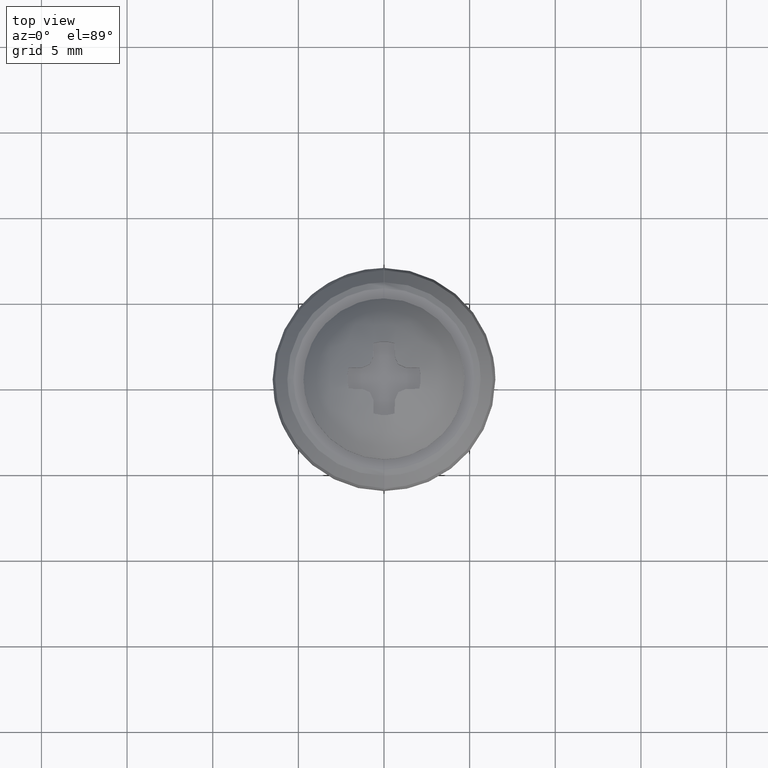
[diagram: clean part render]
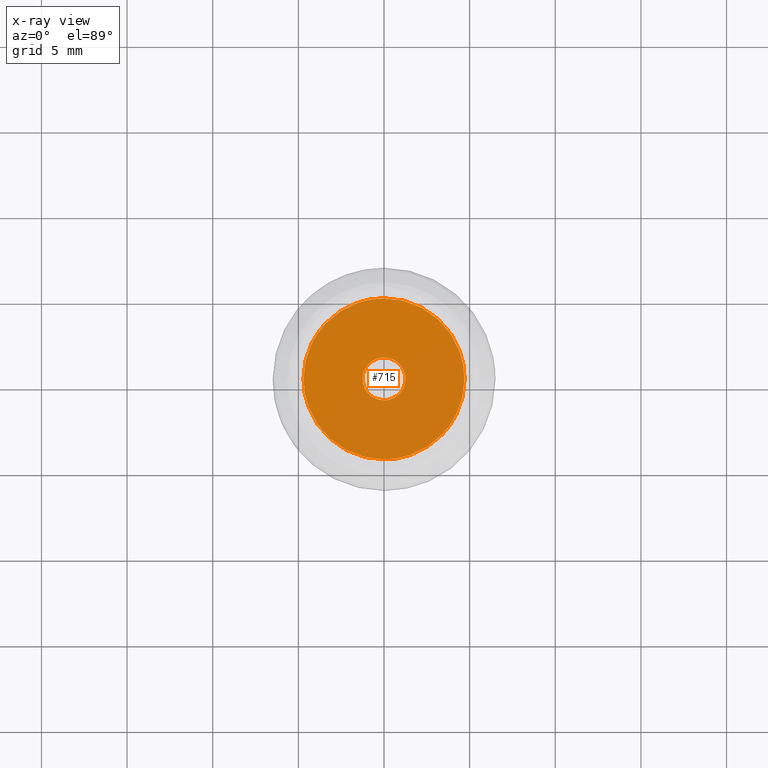
[diagram: x-ray — body ghosted, one internal face saturated and labeled with its STEP entity id]
A machine part, top view, then the same camera in x-ray: the body is ghosted and one INTERNAL B-rep face — a face not visible from any outside direction — is saturated and labeled: STEP entity #715.
In plain terms, the highlighted face is a freeform B-spline surface patch.
Its self-contained STEP definition (entity closure, byte-faithful):
#497=CARTESIAN_POINT('',(0.913298772864262,-0.853454765485998,-3.053113E-016));
#498=VERTEX_POINT('',#497);
#504=CARTESIAN_POINT('',(-0.000000504762925,-1.249999999999848,0.0));
#505=VERTEX_POINT('',#504);
#506=CARTESIAN_POINT('',(0.913298772864262,-0.853454765485998,-3.053113E-016));
#507=CARTESIAN_POINT('',(0.815036685641195,-0.958751061393551,-2.724628E-016));
#508=CARTESIAN_POINT('',(0.616163269110444,-1.108616792406550,-2.059805E-016));
#509=CARTESIAN_POINT('',(0.293348147623508,-1.227160404170854,-9.806499E-017));
#510=CARTESIAN_POINT('',(0.096006950743244,-1.250016650641018,-3.209481E-017));
#511=CARTESIAN_POINT('',(-0.000000504762925,-1.249999999999848,0.0));
#512=B_SPLINE_CURVE_WITH_KNOTS('',3,(#506,#507,#508,#509,#510,#511),.UNSPECIFIED.,.F.,.U.,(4,1,1,4),(0.000000012271989,0.432035370959825,0.736056319482388,1.024079343359964),.UNSPECIFIED.);
#513=EDGE_CURVE('',#498,#505,#512,.T.);
#515=CARTESIAN_POINT('',(-1.249999999999950,0.0,0.0));
#516=VERTEX_POINT('',#515);
#517=CARTESIAN_POINT('',(-0.000000504762925,-1.249999999999848,0.0));
#518=CARTESIAN_POINT('',(-0.086922914385512,-1.250008038506560,0.0));
#519=CARTESIAN_POINT('',(-0.281232915642927,-1.229673677455560,0.0));
#520=CARTESIAN_POINT('',(-0.539074447482532,-1.139198976853185,0.0));
#521=CARTESIAN_POINT('',(-0.761166950377641,-1.000423558041240,0.0));
#522=CARTESIAN_POINT('',(-0.965526266419400,-0.812989997593262,0.0));
#523=CARTESIAN_POINT('',(-1.132075008056065,-0.563717261679689,0.0));
#524=CARTESIAN_POINT('',(-1.230727713776745,-0.270998070501498,0.0));
#525=CARTESIAN_POINT('',(-1.250011359009024,-0.086923556994202,0.0));
#526=CARTESIAN_POINT('',(-1.249999999999950,0.0,0.0));
#527=B_SPLINE_CURVE_WITH_KNOTS('',3,(#517,#518,#519,#520,#521,#522,#523,#524,#525,#526),.UNSPECIFIED.,.F.,.U.,(4,1,1,1,1,1,1,4),(0.000000046898353,0.260771659676944,0.582918602110179,0.813018665775918,1.043103929367112,1.411269265430535,1.702736049401985,1.963507444103697),.UNSPECIFIED.);
#528=EDGE_CURVE('',#505,#516,#527,.T.);
#530=CARTESIAN_POINT('',(-0.913298772864259,0.853454765485996,-3.053113E-016));
#531=VERTEX_POINT('',#530);
#532=CARTESIAN_POINT('',(-1.249999999999950,0.0,0.0));
#533=CARTESIAN_POINT('',(-1.250055502042735,0.127218161839550,-4.551049E-017));
#534=CARTESIAN_POINT('',(-1.214592316061029,0.357154055289585,-1.277668E-016));
#535=CARTESIAN_POINT('',(-1.083436750263942,0.644127939938148,-2.304276E-016));
#536=CARTESIAN_POINT('',(-0.970094649051025,0.792686962621929,-2.835725E-016));
#537=CARTESIAN_POINT('',(-0.913298772864259,0.853454765485996,-3.053113E-016));
#538=B_SPLINE_CURVE_WITH_KNOTS('',3,(#532,#533,#534,#535,#536,#537),.UNSPECIFIED.,.F.,.U.,(4,1,1,4),(0.000000010163139,0.381645720299999,0.689892987150889,0.939428859794186),.UNSPECIFIED.);
#539=EDGE_CURVE('',#516,#531,#538,.T.);
#575=CARTESIAN_POINT('',(0.000000504762939,1.249999999999848,0.0));
#576=VERTEX_POINT('',#575);
#577=CARTESIAN_POINT('',(-0.913298772864259,0.853454765485996,-3.053113E-016));
#578=CARTESIAN_POINT('',(-0.840485534947792,0.931418693822302,-2.809702E-016));
#579=CARTESIAN_POINT('',(-0.678875671974633,1.065080116090091,-2.269449E-016));
#580=CARTESIAN_POINT('',(-0.367987497220752,1.212078282902805,-1.230165E-016));
#581=CARTESIAN_POINT('',(-0.133351924306579,1.250078774282133,-4.457905E-017));
#582=CARTESIAN_POINT('',(0.000000504762939,1.249999999999848,0.0));
#583=B_SPLINE_CURVE_WITH_KNOTS('',3,(#577,#578,#579,#580,#581,#582),.UNSPECIFIED.,.F.,.U.,(4,1,1,4),(0.000000012272007,0.320026811375542,0.624046110245351,1.024079343359976),.UNSPECIFIED.);
#584=EDGE_CURVE('',#531,#576,#583,.T.);
#586=CARTESIAN_POINT('',(1.249999999999950,0.0,0.0));
#587=VERTEX_POINT('',#586);
#588=CARTESIAN_POINT('',(0.000000504762939,1.249999999999848,0.0));
#589=CARTESIAN_POINT('',(0.112495768207603,1.250038912995559,0.0));
#590=CARTESIAN_POINT('',(0.306780005361517,1.223585664392616,0.0));
#591=CARTESIAN_POINT('',(0.560844788915689,1.125575790520098,0.0));
#592=CARTESIAN_POINT('',(0.761176241175037,1.000432261987470,0.0));
#593=CARTESIAN_POINT('',(0.923864016253613,0.851148979651076,0.0));
#594=CARTESIAN_POINT('',(1.061624047284219,0.672369460475011,0.0));
#595=CARTESIAN_POINT('',(1.203642184311960,0.398740695535015,0.0));
#596=CARTESIAN_POINT('',(1.250167510060191,0.158539901888325,0.0));
#597=CARTESIAN_POINT('',(1.249999999999950,0.0,0.0));
#598=B_SPLINE_CURVE_WITH_KNOTS('',3,(#588,#589,#590,#591,#592,#593,#594,#595,#596,#597),.UNSPECIFIED.,.F.,.U.,(4,1,1,1,1,1,1,4),(0.000000046898144,0.337476534324598,0.582918602110022,0.813018665775788,1.043103929367006,1.242525139381614,1.487970623301462,1.963507444103695),.UNSPECIFIED.);
#599=EDGE_CURVE('',#576,#587,#598,.T.);
#601=CARTESIAN_POINT('',(1.249999999999950,0.0,0.0));
#602=CARTESIAN_POINT('',(1.250115732637224,-0.146802018389616,-5.251634E-017));
#603=CARTESIAN_POINT('',(1.207261955561707,-0.386469363251596,-1.382539E-016));
#604=CARTESIAN_POINT('',(1.066259292307313,-0.668259187403949,-2.390602E-016));
#605=CARTESIAN_POINT('',(0.963411606634787,-0.799834556031650,-2.861295E-016));
#606=CARTESIAN_POINT('',(0.913298772864262,-0.853454765485998,-3.053113E-016));
#607=B_SPLINE_CURVE_WITH_KNOTS('',3,(#601,#602,#603,#604,#605,#606),.UNSPECIFIED.,.F.,.U.,(4,1,1,4),(0.000000010163070,0.440358803028899,0.719250307622295,0.939428859794187),.UNSPECIFIED.);
#608=EDGE_CURVE('',#587,#498,#607,.T.);
#614=CARTESIAN_POINT('',(5.169529981781098,-5.169529981781064,0.0));
#615=CARTESIAN_POINT('',(-5.169530233908744,-5.169529981781064,0.0));
#616=CARTESIAN_POINT('',(5.169529981781098,5.169530233908714,0.0));
#617=CARTESIAN_POINT('',(-5.169530233908744,5.169530233908714,0.0));
#618=B_SPLINE_SURFACE_WITH_KNOTS('',1,1,((#614,#616),(#615,#617)),.UNSPECIFIED.,.F.,.F.,.U.,(2,2),(2,2),(0.0,10.339060215689839),(0.0,10.339060215689781),.UNSPECIFIED.);
#619=CARTESIAN_POINT('',(-4.700000000000110,0.0,0.0));
#620=VERTEX_POINT('',#619);
#621=CARTESIAN_POINT('',(-3.409259453146779,3.235266410151651,1.288902E-011));
#622=VERTEX_POINT('',#621);
#623=CARTESIAN_POINT('',(-4.700000000000110,0.0,0.0));
#624=CARTESIAN_POINT('',(-4.700046255585728,0.325242655718406,1.295738E-012));
#625=CARTESIAN_POINT('',(-4.647698246628087,0.827016290952584,3.294760E-012));
#626=CARTESIAN_POINT('',(-4.458283304320987,1.527841977799077,6.086788E-012));
#627=CARTESIAN_POINT('',(-4.252122793935161,2.027295331199715,8.076566E-012));
#628=CARTESIAN_POINT('',(-3.917824394874397,2.628995618835713,1.047369E-011));
#629=CARTESIAN_POINT('',(-3.633179964616851,2.999378490314193,1.194926E-011));
#630=CARTESIAN_POINT('',(-3.409259453146779,3.235266410151651,1.288902E-011));
#631=B_SPLINE_CURVE_WITH_KNOTS('',3,(#623,#624,#625,#626,#627,#628,#629,#630),.UNSPECIFIED.,.F.,.U.,(4,1,1,1,1,4),(5.408504E-009,0.975715602820159,1.505392442969449,2.174448633861725,2.592615232090373,3.568330829501966),.UNSPECIFIED.);
#632=EDGE_CURVE('',#620,#622,#631,.T.);
#633=ORIENTED_EDGE('',*,*,#632,.T.);
#634=CARTESIAN_POINT('',(0.000000526881560,4.700000000000081,0.0));
#635=VERTEX_POINT('',#634);
#636=CARTESIAN_POINT('',(-3.409259453146779,3.235266410151651,1.288902E-011));
#637=CARTESIAN_POINT('',(-3.217824239422350,3.437039763111881,1.216528E-011));
#638=CARTESIAN_POINT('',(-2.866280206428291,3.747044941611219,1.083623E-011));
#639=CARTESIAN_POINT('',(-2.189337388550559,4.184651681109751,8.276990E-012));
#640=CARTESIAN_POINT('',(-1.473320626503791,4.492284338573933,5.570024E-012));
#641=CARTESIAN_POINT('',(-0.685400421727136,4.667382406566481,2.591220E-012));
#642=CARTESIAN_POINT('',(-0.218533600325176,4.700007031995111,8.261881E-013));
#643=CARTESIAN_POINT('',(0.000000526881560,4.700000000000081,0.0));
#644=B_SPLINE_CURVE_WITH_KNOTS('',3,(#636,#637,#638,#639,#640,#641,#642,#643),.UNSPECIFIED.,.F.,.U.,(4,1,1,1,1,4),(6.670335E-009,0.834404410804249,1.400612036202648,2.413811920451836,3.158820281371809,3.814423949989390),.UNSPECIFIED.);
#645=EDGE_CURVE('',#622,#635,#644,.T.);
#646=ORIENTED_EDGE('',*,*,#645,.T.);
#647=CARTESIAN_POINT('',(4.700000000000110,0.0,0.0));
#648=VERTEX_POINT('',#647);
#649=CARTESIAN_POINT('',(0.000000526881560,4.700000000000081,0.0));
#650=CARTESIAN_POINT('',(0.403752582091888,4.700103083499236,0.0));
#651=CARTESIAN_POINT('',(1.076603091936709,4.612756367615255,0.0));
#652=CARTESIAN_POINT('',(1.866935203291803,4.329903886693548,0.0));
#653=CARTESIAN_POINT('',(2.515293583272674,3.991003165182372,0.0));
#654=CARTESIAN_POINT('',(3.030666290933819,3.616087405595303,0.0));
#655=CARTESIAN_POINT('',(3.503253504607628,3.149215633961454,0.0));
#656=CARTESIAN_POINT('',(3.906481829021102,2.645439158878248,0.0));
#657=CARTESIAN_POINT('',(4.230368951205297,2.085782517026316,0.0));
#658=CARTESIAN_POINT('',(4.473438996393506,1.477894921351274,0.0));
#659=CARTESIAN_POINT('',(4.649796083076088,0.817085064903353,0.0));
#660=CARTESIAN_POINT('',(4.700039052382484,0.307615994529741,0.0));
#661=CARTESIAN_POINT('',(4.700000000000110,0.0,0.0));
#662=B_SPLINE_CURVE_WITH_KNOTS('',3,(#649,#650,#651,#652,#653,#654,#655,#656,#657,#658,#659,#660,#661),.UNSPECIFIED.,.F.,.U.,(4,1,1,1,1,1,1,1,1,1,4),(0.000000023526750,1.211229776813061,2.018722031899608,2.508983718650562,3.403000720051083,3.922076250068382,4.498864188297112,5.335191836571467,5.854295131382029,6.459914093567249,7.382754020358038),.UNSPECIFIED.);
#663=EDGE_CURVE('',#635,#648,#662,.T.);
#664=ORIENTED_EDGE('',*,*,#663,.T.);
#665=CARTESIAN_POINT('',(3.409259453146791,-3.235266410151661,1.288902E-011));
#666=VERTEX_POINT('',#665);
#667=CARTESIAN_POINT('',(4.700000000000110,0.0,0.0));
#668=CARTESIAN_POINT('',(4.700023725248407,-0.269484365207751,1.073602E-012));
#669=CARTESIAN_POINT('',(4.655119273100448,-0.789858044954191,3.146725E-012));
#670=CARTESIAN_POINT('',(4.459816667023847,-1.548187326347996,6.167842E-012));
#671=CARTESIAN_POINT('',(4.087462473300669,-2.392904307130253,9.533120E-012));
#672=CARTESIAN_POINT('',(3.690815151884670,-2.938761734883979,1.170777E-011));
#673=CARTESIAN_POINT('',(3.409259453146791,-3.235266410151661,1.288902E-011));
#674=B_SPLINE_CURVE_WITH_KNOTS('',3,(#667,#668,#669,#670,#671,#672,#673),.UNSPECIFIED.,.F.,.U.,(4,1,1,1,4),(5.408447E-009,0.808449820043560,1.561147377980241,2.341714693913546,3.568330829501972),.UNSPECIFIED.);
#675=EDGE_CURVE('',#648,#666,#674,.T.);
#676=ORIENTED_EDGE('',*,*,#675,.T.);
#677=CARTESIAN_POINT('',(-0.000000526881497,-4.700000000000080,0.0));
#678=VERTEX_POINT('',#677);
#679=CARTESIAN_POINT('',(3.409259453146791,-3.235266410151661,1.288902E-011));
#680=CARTESIAN_POINT('',(3.163152691824094,-3.494721283181456,1.195859E-011));
#681=CARTESIAN_POINT('',(2.772250391377759,-3.822121333359122,1.048075E-011));
#682=CARTESIAN_POINT('',(2.156554425098144,-4.187628341521457,8.153051E-012));
#683=CARTESIAN_POINT('',(1.575219685995976,-4.448410074994956,5.955263E-012));
#684=CARTESIAN_POINT('',(0.834400840624371,-4.650488180274870,3.154530E-012));
#685=CARTESIAN_POINT('',(0.278134793945930,-4.700023704279475,1.051516E-012));
#686=CARTESIAN_POINT('',(-0.000000526881497,-4.700000000000080,0.0));
#687=B_SPLINE_CURVE_WITH_KNOTS('',3,(#679,#680,#681,#682,#683,#684,#685,#686),.UNSPECIFIED.,.F.,.U.,(4,1,1,1,1,4),(6.669158E-009,1.072807574191524,1.519811698002524,2.145607766890563,2.980019545851611,3.814423949989336),.UNSPECIFIED.);
#688=EDGE_CURVE('',#666,#678,#687,.T.);
#689=ORIENTED_EDGE('',*,*,#688,.T.);
#690=CARTESIAN_POINT('',(-0.000000526881497,-4.700000000000080,0.0));
#691=CARTESIAN_POINT('',(-0.317227659366487,-4.700040884844541,0.0));
#692=CARTESIAN_POINT('',(-0.951670029914011,-4.635536877277661,0.0));
#693=CARTESIAN_POINT('',(-1.818358790862121,-4.363905402784107,0.0));
#694=CARTESIAN_POINT('',(-2.482062432482420,-4.009104473370398,0.0));
#695=CARTESIAN_POINT('',(-3.112603487999940,-3.550441509125362,0.0));
#696=CARTESIAN_POINT('',(-3.676746256984866,-2.979356547296827,0.0));
#697=CARTESIAN_POINT('',(-4.124174452548295,-2.291501859830807,0.0));
#698=CARTESIAN_POINT('',(-4.446817081571493,-1.581377811348400,0.0));
#699=CARTESIAN_POINT('',(-4.650342294855427,-0.845940393666725,0.0));
#700=CARTESIAN_POINT('',(-4.700015036958896,-0.269161543387488,0.0));
#701=CARTESIAN_POINT('',(-4.700000000000110,0.0,0.0));
#702=B_SPLINE_CURVE_WITH_KNOTS('',3,(#690,#691,#692,#693,#694,#695,#696,#697,#698,#699,#700,#701),.UNSPECIFIED.,.F.,.U.,(4,1,1,1,1,1,1,1,1,4),(0.000000023525984,0.951675947186006,1.903366565501375,2.710861401298099,3.201123916433618,4.239307674653311,5.104480620965454,5.652421461018626,6.575266852877235,7.382754020358069),.UNSPECIFIED.);
#703=EDGE_CURVE('',#678,#620,#702,.T.);
#704=ORIENTED_EDGE('',*,*,#703,.T.);
#705=EDGE_LOOP('',(#633,#646,#664,#676,#689,#704));
#706=FACE_OUTER_BOUND('',#705,.T.);
#707=ORIENTED_EDGE('',*,*,#599,.F.);
#708=ORIENTED_EDGE('',*,*,#584,.F.);
#709=ORIENTED_EDGE('',*,*,#539,.F.);
#710=ORIENTED_EDGE('',*,*,#528,.F.);
#711=ORIENTED_EDGE('',*,*,#513,.F.);
#712=ORIENTED_EDGE('',*,*,#608,.F.);
#713=EDGE_LOOP('',(#707,#708,#709,#710,#711,#712));
#714=FACE_BOUND('',#713,.T.);
#715=ADVANCED_FACE('',(#706,#714),#618,.T.);